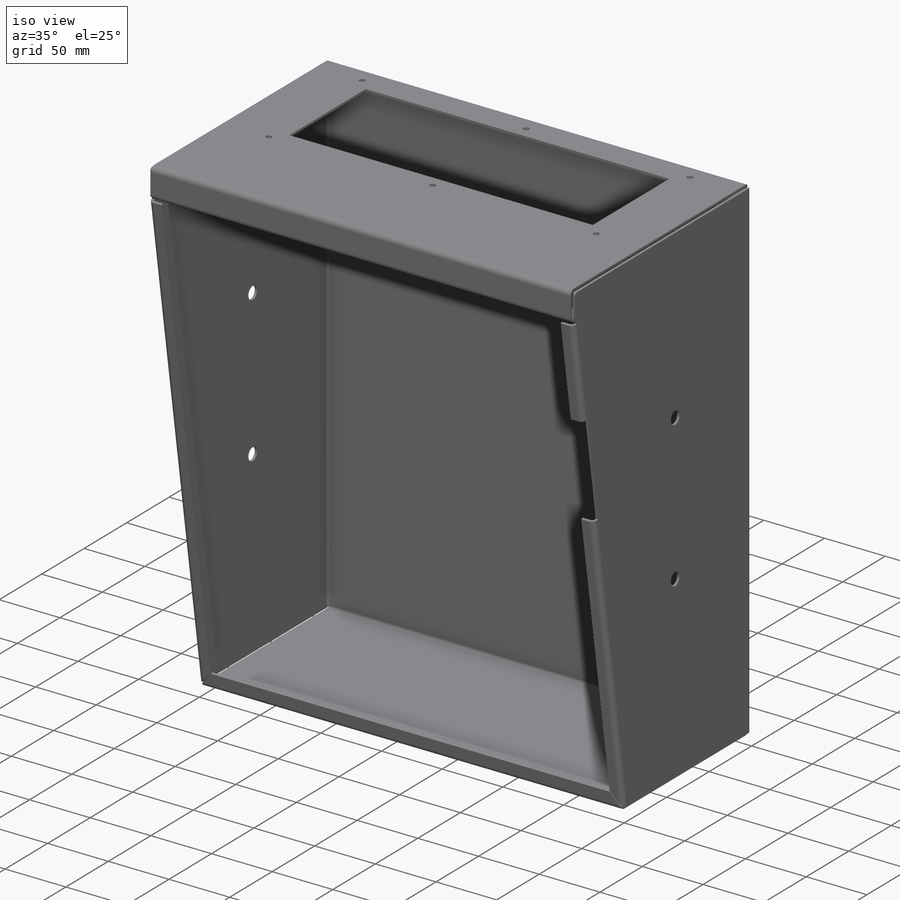
[diagram: iso view]
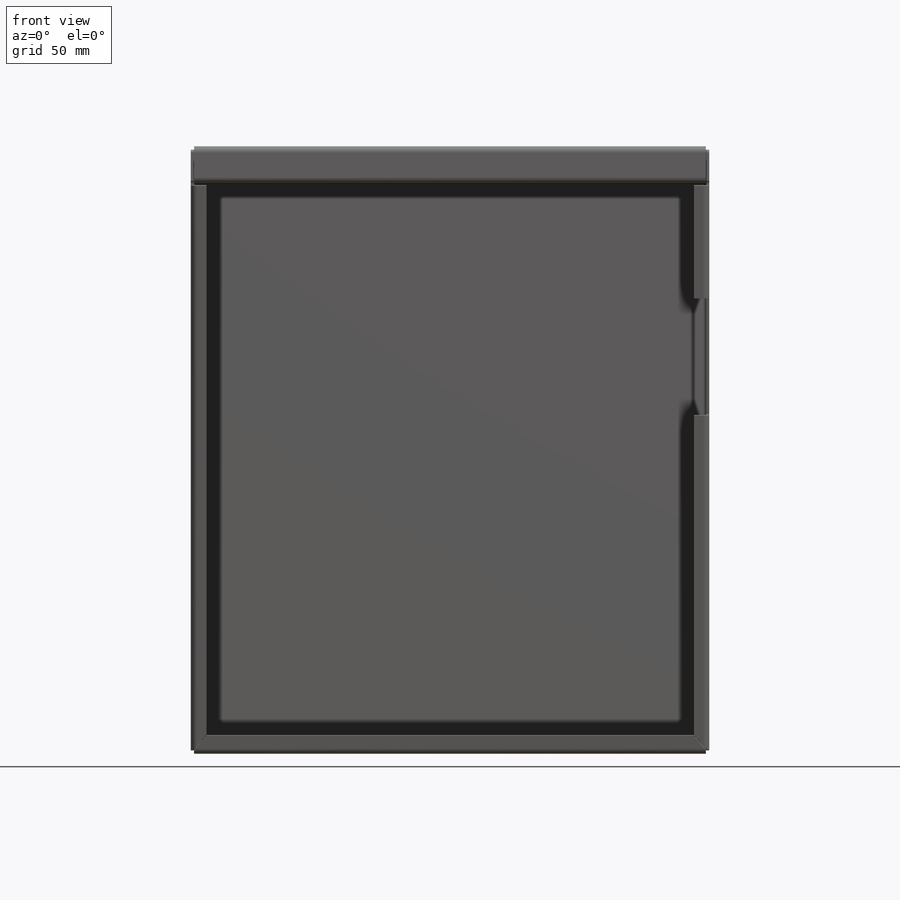
[diagram: front view]
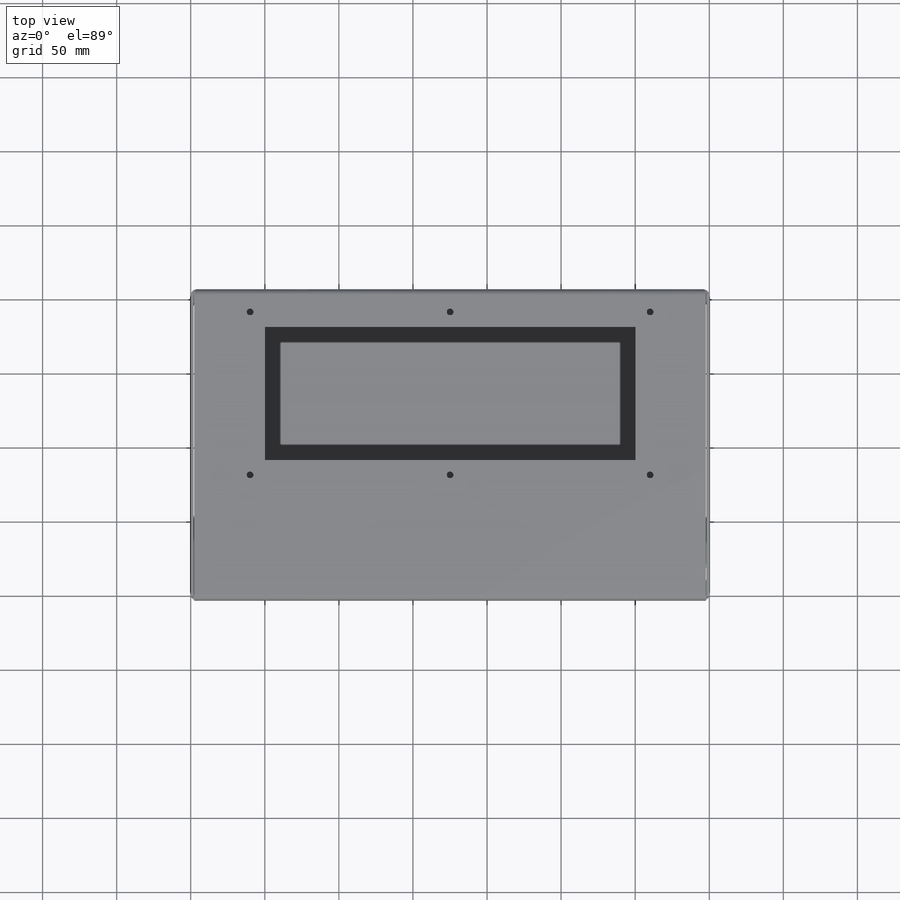
[diagram: top view]
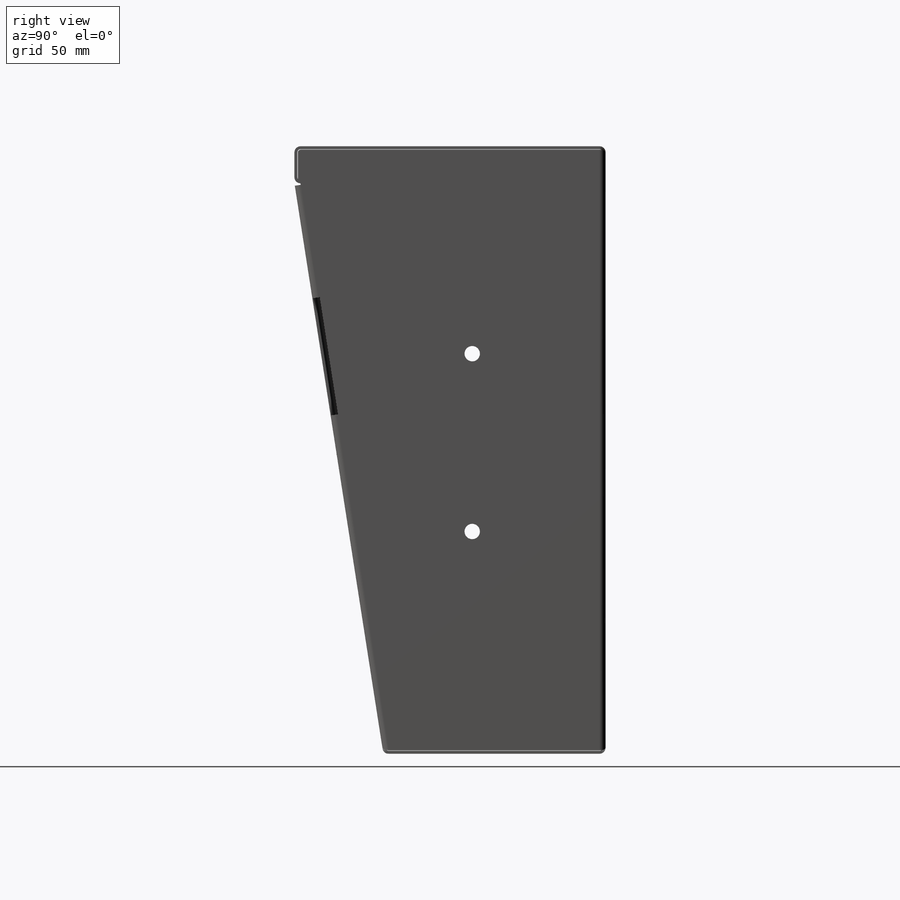
[diagram: right view]
SOLIDWORKS PART (.sldprt)
format: sldprt  version: not decoded by parser v0  size: 714,752 bytes
history: native  units: mm
features: sketch x21, extrude x4, cut_extrude x4, plane x3, hole x2, sheet_metal_op x2, material x1, shell x1 + 2 further entries (+9 scaffold rows collapsed; 2 parser-record rows omitted)
feature tree (51):
  scaffold x9  (default folders/planes/origin — collapsed)
  material  "Material <nicht festgelegt>"
  plane  "Vorne"
  plane  "Oben"
  plane  "Links"
  sketch  "Skizze1"  dims[c1.D1=~77.560771mm c1.D2=~97.818146mm c2.D1=350.0mm c2.D2=410.0mm]
  extrude  "Aufsatz-Linear austragen2"  Depth=210mm
  sketch  "Skizze2"  dims[D1=150.0mm D2=25.0mm]
  cut_extrude  "Schnitt-Linear austragen1"  [1 undecoded]
  shell  "Wandung1"  Thickness=2mm
  sketch  "Skizze6"  dims[c1.D1=23.0mm c1.D2=346.0mm c2.D1=21.0mm]
  extrude  "Aufsatz-Linear austragen3"  Depth=2mm
  sketch  "Skizze9"  dims[c1.D1=~13.68702mm c1.D2=346.0mm c2.D1=18.0mm]
  extrude  "Aufsatz-Linear austragen7"  Depth=1.999mm
  sketch  "Skizze8"  dims[D1=388.0mm D2=10.5mm D3=12.5mm D4=10.5mm]
  extrude  "Aufsatz-Linear austragen5"  Depth=2mm
  sketch  "Skizze10"  dims[c1.D1=~101.65189mm c1.D2=9.7634mm c2.D1=231.0mm c2.D2=80.0mm c2.D3=~231.000518mm c3.D1=231.0mm]
  cut_extrude  "Schnitt-Linear austragen2"  Depth=5mm
  sketch  "Skizze11"  dims[c1.D1=~113.555132mm c1.D2=~281.184137mm c2.D1=~24.719485mm c2.D2=~9.656049mm c3.D1=250.0mm c3.D2=90.0mm c3.D3=25.5mm c3.D4=~54.353013mm c3.D5=90.0deg c4.D3=25.5mm]
  cut_extrude  "Schnitt-Linear austragen3"  Depth=5mm
  hole  "Bohrung1"  Diameter=10.4mm Depth=5500mm
  sketch  "Skizze13"  dims[c1.D1=120.0mm c1.D2=140.0mm c1.D3=90.0mm c1.D4=~164.754363mm c2.D3=90.0mm c2.D4=~183.912367mm c2.D2=140.0mm]
  sketch  "Skizze12"  dims[Durchmesser=10.4mm Tiefe=5500.0mm]
  hole  "Ø4.5 (4.5) Durchmesser Bohrung1"  Diameter=4.5mm Depth=10mm
  sketch  "Skizze15"  dims[D1=110.0mm D2=135.0mm]
  sketch  "Skizze14"  dims[hole-wizard template sketch: 46 standard entries collapsed; hole parameters kept: c15.Bohrerdurchmesser=4.5mm c15.Bohrungstiefe=10.0mm c15.D3=~14.816244mm c15.Spitzenwinkel=118.0deg c15.D1=2.0mm c15.D2=0.45 c16.D3=0.0mm c16.D6=500.0mm]
  sketch  "Skizze16"  dims[D1=~16.324828mm]
  sketch  "Skizze17"  dims[D1=~16.324828mm]
  sketch  "Skizze18"  dims[c1.D1=~1.647276mm c1.D2=2.0mm c2.D1=~1.647276mm c2.D2=2.0mm]
  cut_extrude  "Schnitt-Linear austragen4"  Depth=4mm Biegung-Winkel4=0 Biegung-Winkel5=0 Biegung-Winkel6=0 Biegung-Winkel7=0 Biegung-Winkel8=0 Biegung-Winkel9=0 Biegung-Winkel10=0 Biegung-Winkel11=0
  sketch  "Skizze25"  dims[c1.Kantenbiegung1=0.0 c1.D1=2.0mm c1.D4=90.0deg c1.D5=30.0 c1.D8=0.0mm c1.D9=0.0mm c2.D1=2.0mm c2.D2=500.0mm c2.D3=0.0mm c2.D6=10.0mm c2.D7=18.0mm c3.D1=1.5mm c3.D0=1.5mm c4.D0=1.5mm c4.D7=5.0mm]
  sketch  "Biegung-Linien1"
  sketch  "Rahmen1"
  sheet_metal_op  "Blech(14)"
  "Abwicklung(14)"
  sketch  "Biegung-Linien2"
  sketch  "Rahmen2"
  parser-record x2  (decoder bookkeeping rows leaked as tree rows — omitted from the tree; the rows remain in map.json)
  sheet_metal_op  "Blech(15)"
  "Abwicklung(14)"
  sketch  "Biegung-Linien2"
  sketch  "Rahmen2"
decode coverage: 25 of 34 modeling features carry decoded parameters; 2 rows unclassified (native names shown)
note: ~ marks probable driven/reference dimensions
note: 1 parameter value undecoded
note: suppression state not decoded; provenance and decode notes live in map.json
